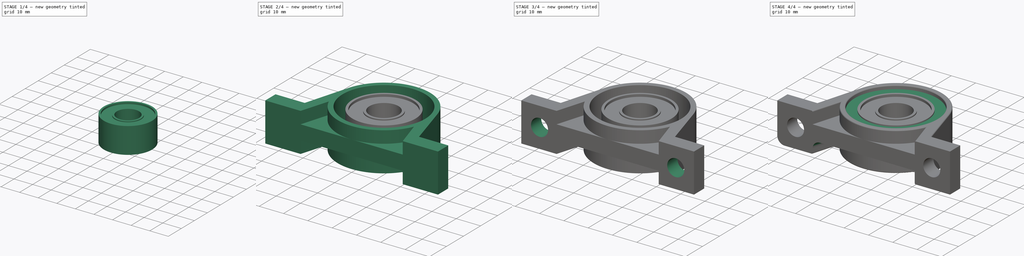
[diagram: build sequence overview — one tinted view per stage of 4, left to right]
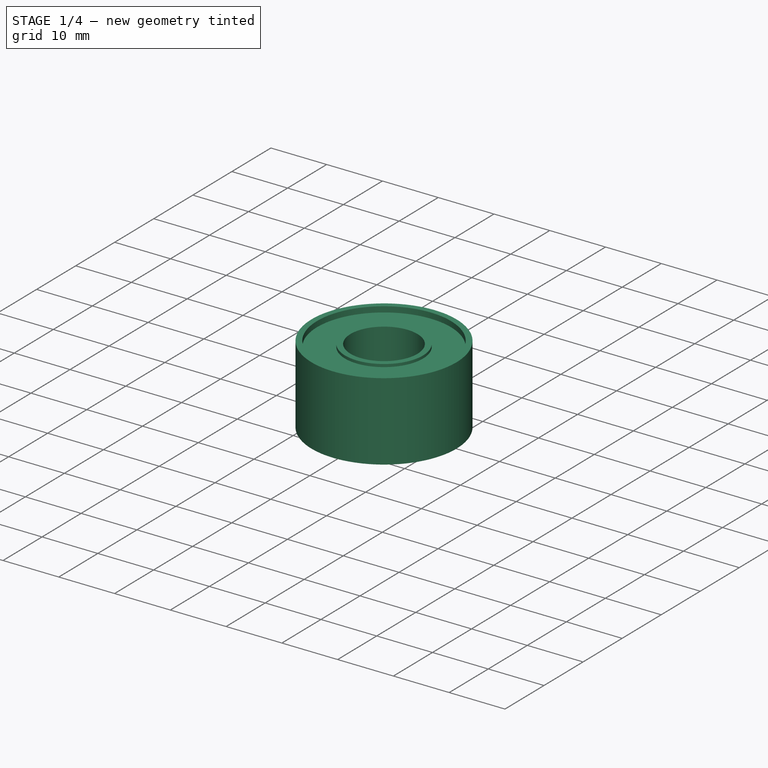
[diagram: stage 1 of 4 — iso view after this stage's code; geometry added in this stage tinted green]
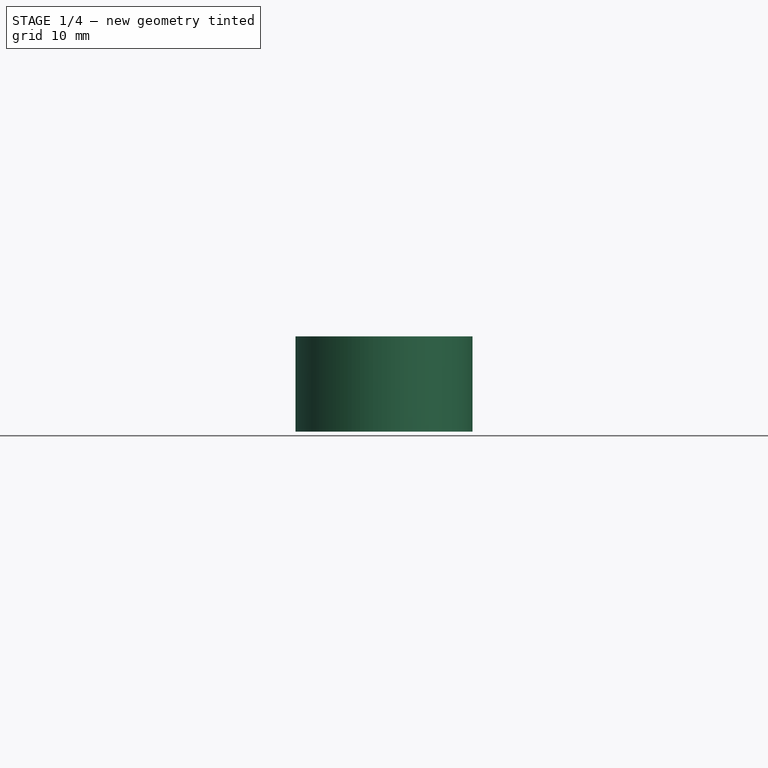
[diagram: stage 1 of 4 — front view after this stage's code; geometry added in this stage tinted green]
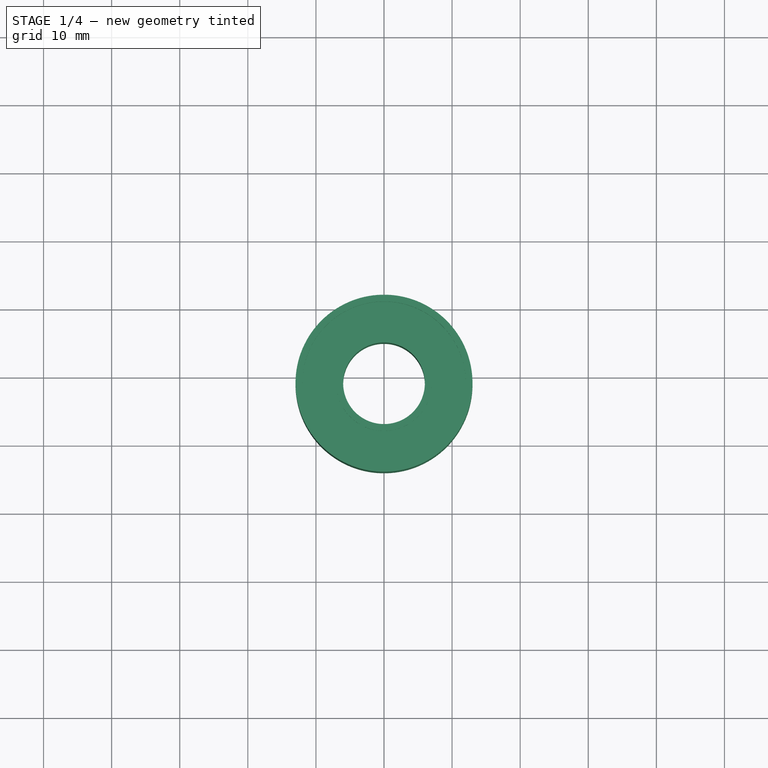
[diagram: stage 1 of 4 — top view after this stage's code; geometry added in this stage tinted green]
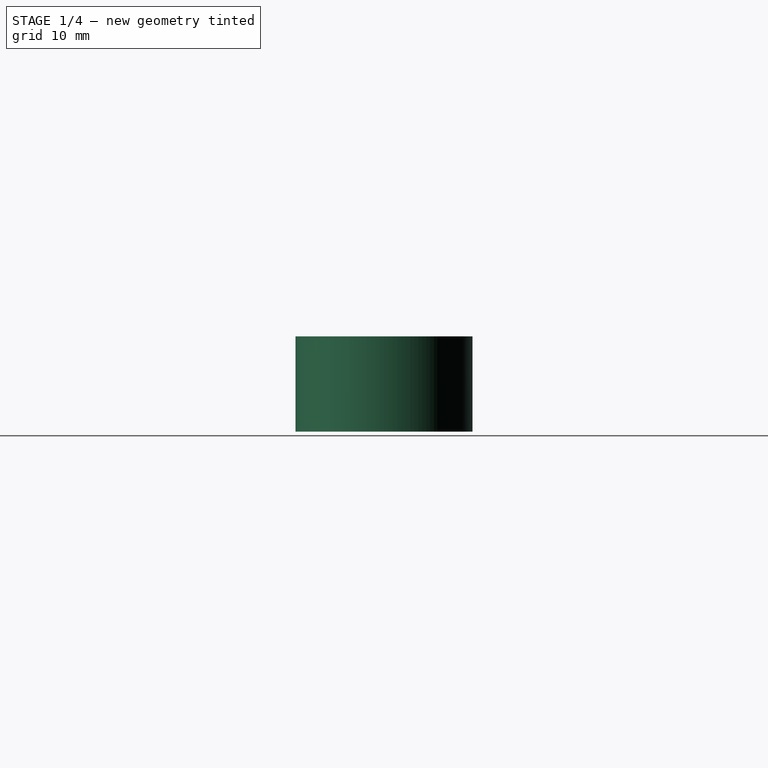
[diagram: stage 1 of 4 — right view after this stage's code; geometry added in this stage tinted green]
FCSTD DOCUMENT  (FreeCAD 1.0R39319 (Git))
Label: PillowBlock-KP001
License: All rights reserved
LicenseURL: http://en.wikipedia.org/wiki/All_rights_reserved
objects: Sketcher::SketchObject×7, PartDesign::Pad×5, PartDesign::Body×5, PartDesign::Pocket×2, PartDesign::Mirrored×2, PartDesign::Fillet×2
note: 50 computed .brp shape members not serialized (recipe doc carries the construction recipe); baked Part::Feature solids carry a one-line shape summary decoded from their .brp

FEATURE [PartDesign::Body] Body
  AllowCompound = false
  Group = -> [Sketch,Pad,Sketch001,Pocket,Mirrored,Sketch002,Pocket001,Mirrored001,Fillet,Fillet001]
  Origin = -> Origin
  Tip = -> Fillet001
FEATURE [Sketcher::SketchObject] Sketch004
  ArcFitTolerance = 0
  AttachmentOffset = pos=(0,19,0) rot=(0,0,1;0rad)
  AttachmentSupport = -> [XY_Plane002]
  FullyConstrained = true
  MakeInternals = false
  MapMode = 5
  Placement = pos=(0,19,0) rot=(0,0,1;0rad)
  sketch-geometry (2):
    g0: Circle CenterX=0 CenterY=0 CenterZ=0 NormalX=0 NormalY=0 NormalZ=1 AngleXU=0 Radius=13
    g1: Circle CenterX=0 CenterY=0 CenterZ=0 NormalX=0 NormalY=0 NormalZ=1 AngleXU=0 Radius=12
  constraints (4):
    c: Coincident(g0,g-1)
    c: Diameter(g0) = 26
    c: Coincident(g1,g0)
    c: Diameter(g1) = 24
FEATURE [PartDesign::Pad] Pad002
  AllowMultiFace = false
  Direction = (0,0,1)
  Length = 14
  Length2 = 100
  Midplane = true
  Profile = -> Sketch004
  Suppressed = false
  Type = 0
FEATURE [PartDesign::Body] Body002
  AllowCompound = false
  Group = -> [Sketch004,Pad002]
  Origin = -> Origin002
  Tip = -> Pad002
FEATURE [Sketcher::SketchObject] Sketch005
  ArcFitTolerance = 0
  AttachmentOffset = pos=(0,19,0) rot=(0,0,1;0rad)
  AttachmentSupport = -> [XY_Plane003]
  FullyConstrained = true
  MakeInternals = false
  MapMode = 5
  Placement = pos=(0,19,0) rot=(0,0,1;0rad)
  sketch-geometry (2):
    g0: Circle CenterX=0 CenterY=0 CenterZ=0 NormalX=0 NormalY=0 NormalZ=1 AngleXU=0 Radius=12
    g1: Circle CenterX=0 CenterY=0 CenterZ=0 NormalX=0 NormalY=0 NormalZ=1 AngleXU=0 Radius=7
  constraints (4):
    c: Coincident(g0,g-1)
    c: Coincident(g1,g0)
    c: Diameter(g0) = 24
    c: Diameter(g1) = 14
FEATURE [PartDesign::Pad] Pad003
  AllowMultiFace = false
  Direction = (0,0,1)
  Length = 12
  Length2 = 100
  Midplane = true
  Profile = -> Sketch005
  Suppressed = false
  Type = 0
FEATURE [PartDesign::Body] Body003
  AllowCompound = false
  Group = -> [Sketch005,Pad003]
  Origin = -> Origin003
  Tip = -> Pad003
FEATURE [Sketcher::SketchObject] Sketch006
  ArcFitTolerance = 0
  AttachmentOffset = pos=(0,19,0) rot=(0,0,1;0rad)
  AttachmentSupport = -> [XY_Plane004]
  FullyConstrained = true
  MakeInternals = false
  MapMode = 5
  Placement = pos=(0,19,0) rot=(0,0,1;0rad)
  sketch-geometry (2):
    g0: Circle CenterX=0 CenterY=0 CenterZ=0 NormalX=0 NormalY=0 NormalZ=1 AngleXU=0 Radius=7
    g1: Circle CenterX=0 CenterY=0 CenterZ=0 NormalX=0 NormalY=0 NormalZ=1 AngleXU=0 Radius=6
  constraints (4):
    c: Coincident(g0,g-1)
    c: Coincident(g1,g0)
    c: Diameter(g0) = 14
    c: Diameter(g1) = 12
FEATURE [PartDesign::Pad] Pad004
  AllowMultiFace = false
  Direction = (0,0,1)
  Length = 13
  Length2 = 100
  Midplane = true
  Profile = -> Sketch006
  Suppressed = false
  Type = 0
FEATURE [PartDesign::Body] Body004
  AllowCompound = false
  Group = -> [Sketch006,Pad004]
  Origin = -> Origin004
  Tip = -> Pad004
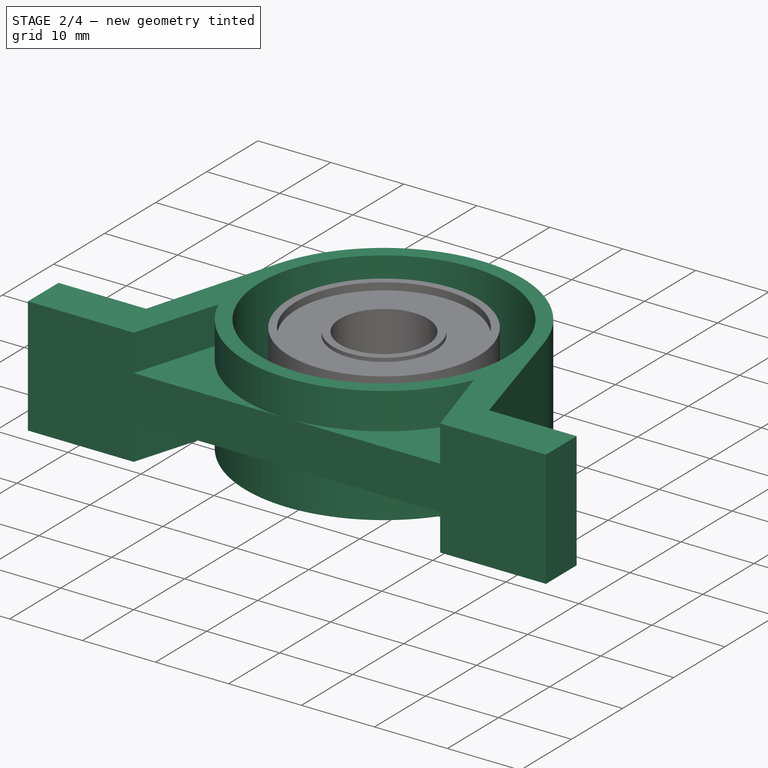
[diagram: stage 2 of 4 — iso view after this stage's code; geometry added in this stage tinted green]
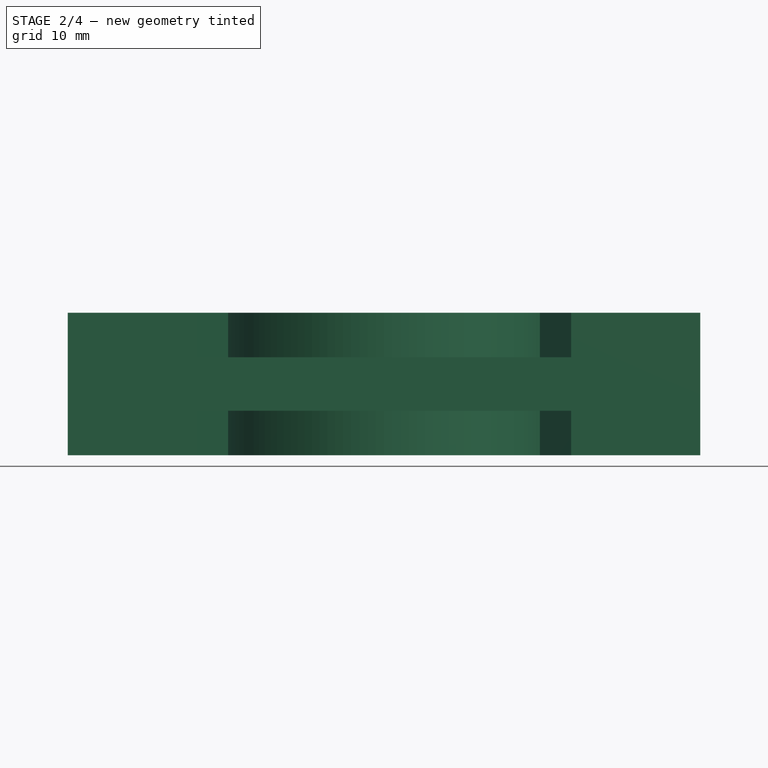
[diagram: stage 2 of 4 — front view after this stage's code; geometry added in this stage tinted green]
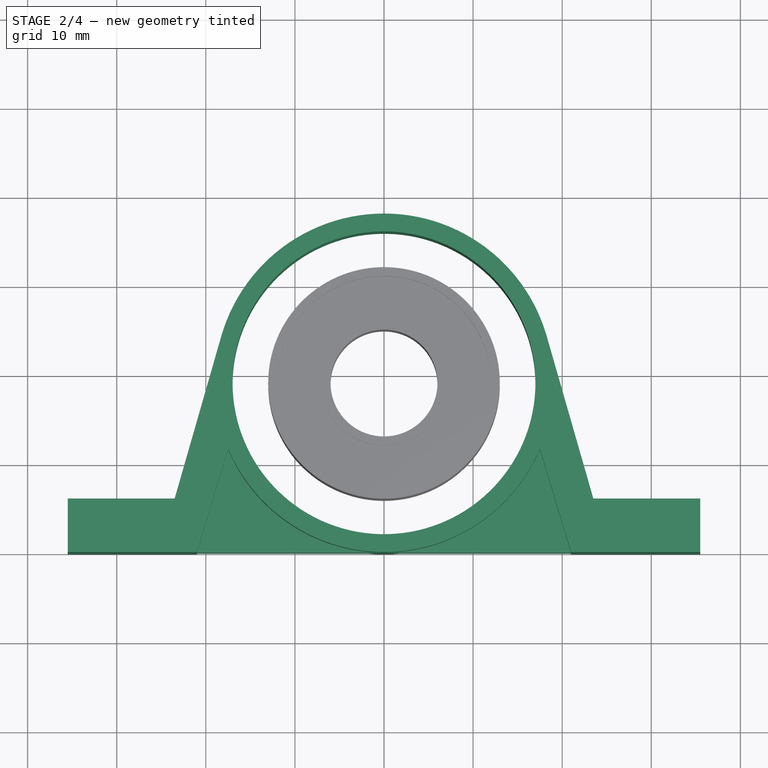
[diagram: stage 2 of 4 — top view after this stage's code; geometry added in this stage tinted green]
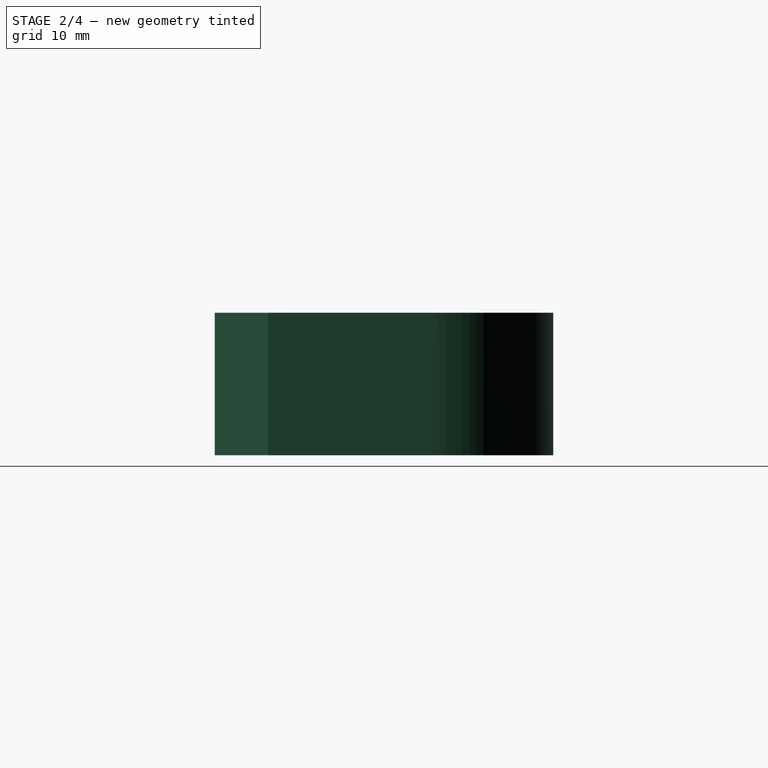
[diagram: stage 2 of 4 — right view after this stage's code; geometry added in this stage tinted green]
FEATURE [Sketcher::SketchObject] Sketch
  ArcFitTolerance = 0
  AttachmentSupport = -> [XY_Plane]
  FullyConstrained = true
  MakeInternals = false
  MapMode = 5
  sketch-geometry (9):
    g0: Circle CenterX=4e-16 CenterY=19 CenterZ=0 NormalX=0 NormalY=0 NormalZ=1 AngleXU=0 Radius=17
    g1: LineSegment StartX=-35.5 StartY=0 StartZ=0 EndX=-35.5 EndY=6 EndZ=0
    g2: LineSegment StartX=-35.5 StartY=6 StartZ=0 EndX=-23.5 EndY=6 EndZ=0
    g3: LineSegment StartX=-23.5 StartY=6 StartZ=0 EndX=-18.2622 EndY=24.2432 EndZ=0
    g4: LineSegment StartX=35.5 StartY=0 StartZ=0 EndX=35.5 EndY=6 EndZ=0
    g5: LineSegment StartX=35.5 StartY=6 StartZ=0 EndX=23.5 EndY=6 EndZ=0
    g6: LineSegment StartX=23.5 StartY=6 StartZ=0 EndX=18.2622 EndY=24.2432 EndZ=0
    g7: ArcOfCircle CenterX=4e-16 CenterY=19 CenterZ=0 NormalX=0 NormalY=0 NormalZ=1 AngleXU=0 Radius=19 StartAngle=0.279588 EndAngle=2.862
    g8: LineSegment StartX=-35.5 StartY=0 StartZ=0 EndX=35.5 EndY=0 EndZ=0
  constraints (25):
    c: Diameter(g0) = 34
    c: DistanceY(g0) = 19
    c: PointOnObject(g1,g-1)
    c: Coincident(g1,g2)
    c: Horizontal(g2)
    c: Coincident(g2,g3)
    c: Vertical(g1)
    c: Coincident(g4,g5)
    c: Horizontal(g5)
    c: Coincident(g5,g6)
    c: Vertical(g4)
    c: Symmetric(g1,g4,g-2)
    c: Equal(g1,g4)
    c: DistanceY(g1,g1) = 6
    c: DistanceX(g1,g4) = 71
    c: Symmetric(g3,g6,g-2)
    c: Equal(g2,g5)
    c: Coincident(g7,g0)
    c: Coincident(g7,g3)
    c: Coincident(g7,g6)
    c: Tangent(g3,g7) = 1.5708
    c: DistanceX(g2,g2) = 12
    c: Coincident(g8,g1)
    c: Diameter(g7) = 38
    c: Coincident(g8,g4)
FEATURE [PartDesign::Pad] Pad
  AllowMultiFace = false
  Direction = (0,0,1)
  Length = 16
  Length2 = 100
  Midplane = true
  Profile = -> Sketch
  Suppressed = false
  Type = 0
FEATURE [Sketcher::SketchObject] Sketch001
  ArcFitTolerance = 0
  AttachmentSupport = -> [Pad]
  FullyConstrained = true
  MakeInternals = false
  MapMode = 5
  Placement = pos=(0,0,8) rot=(0,0,1;0rad)
  sketch-geometry (6):
    g0: LineSegment StartX=17.5 StartY=11.6007 StartZ=0 EndX=21 EndY=0 EndZ=0
    g1: ArcOfCircle CenterX=0 CenterY=19 CenterZ=0 NormalX=0 NormalY=0 NormalZ=1 AngleXU=0 Radius=19 StartAngle=3.54161 EndAngle=5.88316
    g2: LineSegment StartX=-17.5 StartY=11.6007 StartZ=0 EndX=-21 EndY=0 EndZ=0
    g3: LineSegment StartX=-21 StartY=0 StartZ=0 EndX=-21 EndY=-2 EndZ=0
    g4: LineSegment StartX=-21 StartY=-2 StartZ=0 EndX=21 EndY=-2 EndZ=0
    g5: LineSegment StartX=21 StartY=-2 StartZ=0 EndX=21 EndY=0 EndZ=0
  constraints (18):
    c: DistanceX(g0) = 17.5
    c: PointOnObject(g1,g-2)
    c: Coincident(g1,g0)
    c: DistanceY(g1) = 19
    c: Radius(g1) = 19
    c: Coincident(g2,g1)
    c: Symmetric(g2,g0,g-2)
    c: Horizontal(g1,g0)
    c: Coincident(g2,g3)
    c: Vertical(g3)
    c: Coincident(g3,g4)
    c: Horizontal(g4)
    c: Coincident(g4,g5)
    c: Coincident(g5,g0)
    c: Vertical(g5)
    c: DistanceY(g5,g5) = 2
    c: DistanceX(g4,g4) = 42
    c: DistanceY(g3,g-1) = 2
FEATURE [PartDesign::Pocket] Pocket
  AllowMultiFace = false
  BaseFeature = -> Pad
  Direction = (0,0,-1)
  Length = 5
  Length2 = 100
  Profile = -> Sketch001
  Suppressed = false
  Type = 0
FEATURE [PartDesign::Mirrored] Mirrored
  BaseFeature = -> Pocket
  MirrorPlane = -> XY_Plane
  Originals = -> [Pocket]
  Suppressed = false
  TransformMode = 0
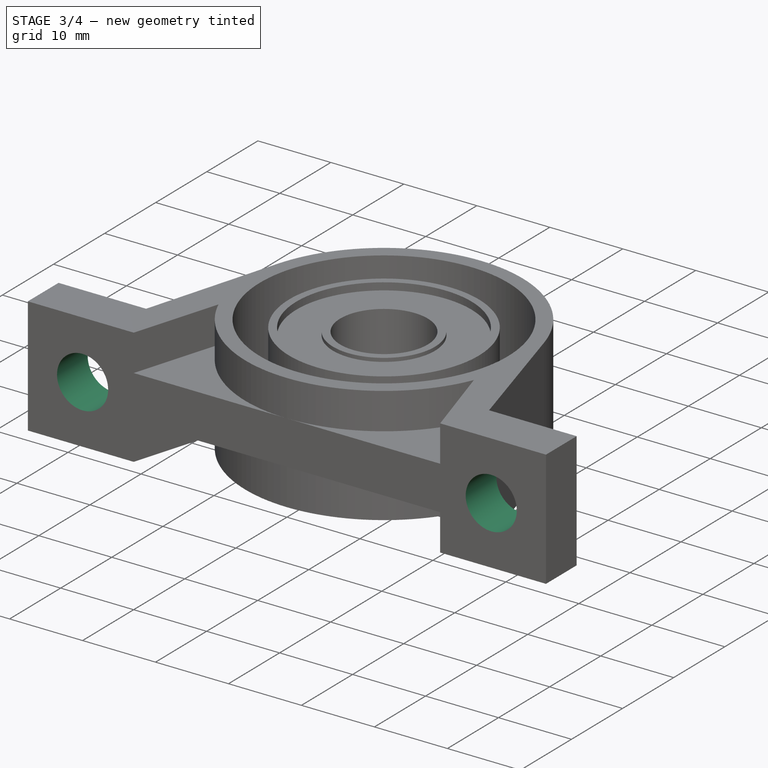
[diagram: stage 3 of 4 — iso view after this stage's code; geometry added in this stage tinted green]
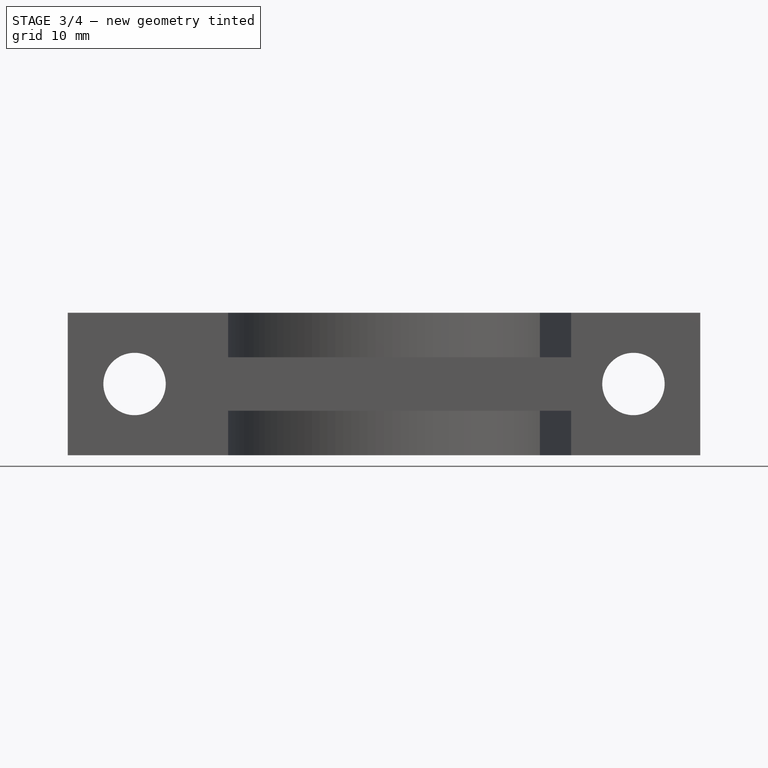
[diagram: stage 3 of 4 — front view after this stage's code; geometry added in this stage tinted green]
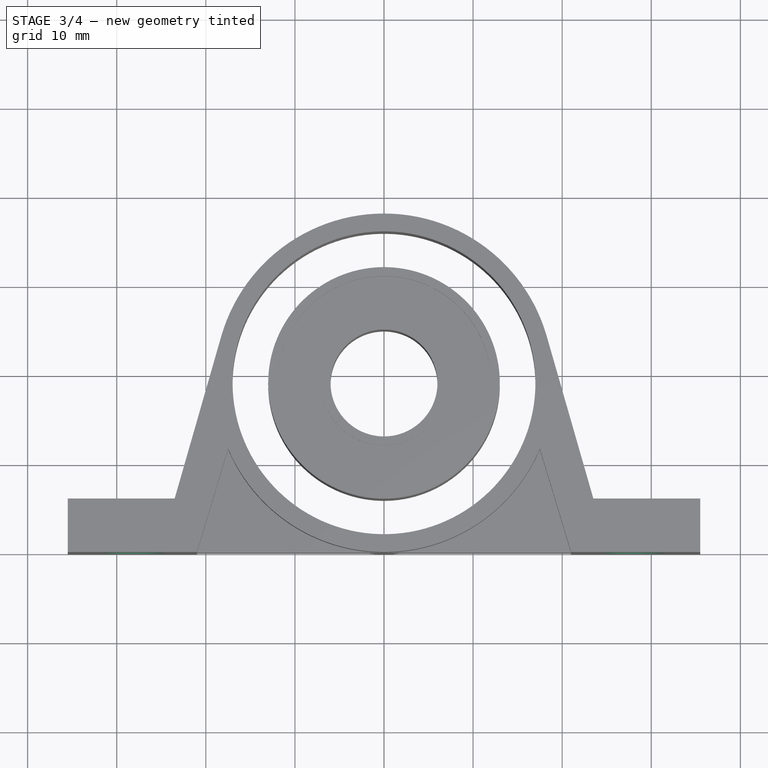
[diagram: stage 3 of 4 — top view after this stage's code; geometry added in this stage tinted green]
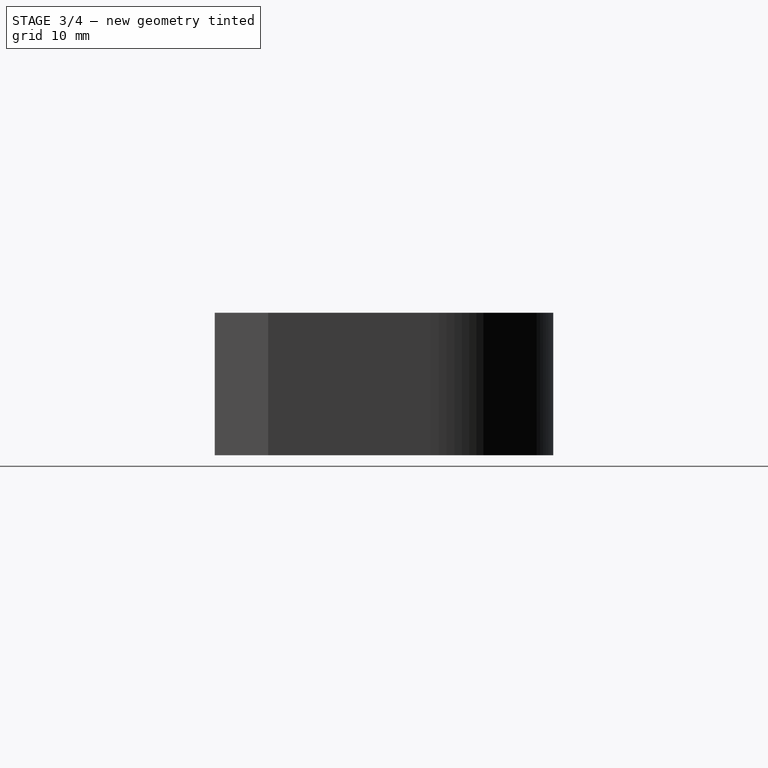
[diagram: stage 3 of 4 — right view after this stage's code; geometry added in this stage tinted green]
FEATURE [Sketcher::SketchObject] Sketch002
  ArcFitTolerance = 0
  AttachmentSupport = -> [Mirrored]
  FullyConstrained = true
  MakeInternals = false
  MapMode = 5
  Placement = pos=(0,0,0) rot=(1,0,0;1.5708rad)
  sketch-geometry (1):
    g0: Circle CenterX=-28 CenterY=0 CenterZ=0 NormalX=0 NormalY=0 NormalZ=1 AngleXU=0 Radius=3.5
  constraints (3):
    c: PointOnObject(g0,g-1)
    c: DistanceX(g0,g-1) = 28
    c: Diameter(g0) = 7
FEATURE [PartDesign::Pocket] Pocket001
  AllowMultiFace = false
  BaseFeature = -> Mirrored
  Direction = (0,1,-2e-16)
  Length = 6
  Length2 = 100
  Profile = -> Sketch002
  Suppressed = false
  Type = 0
FEATURE [PartDesign::Mirrored] Mirrored001
  BaseFeature = -> Pocket001
  MirrorPlane = -> YZ_Plane
  Originals = -> [Pocket001]
  Suppressed = false
  TransformMode = 0
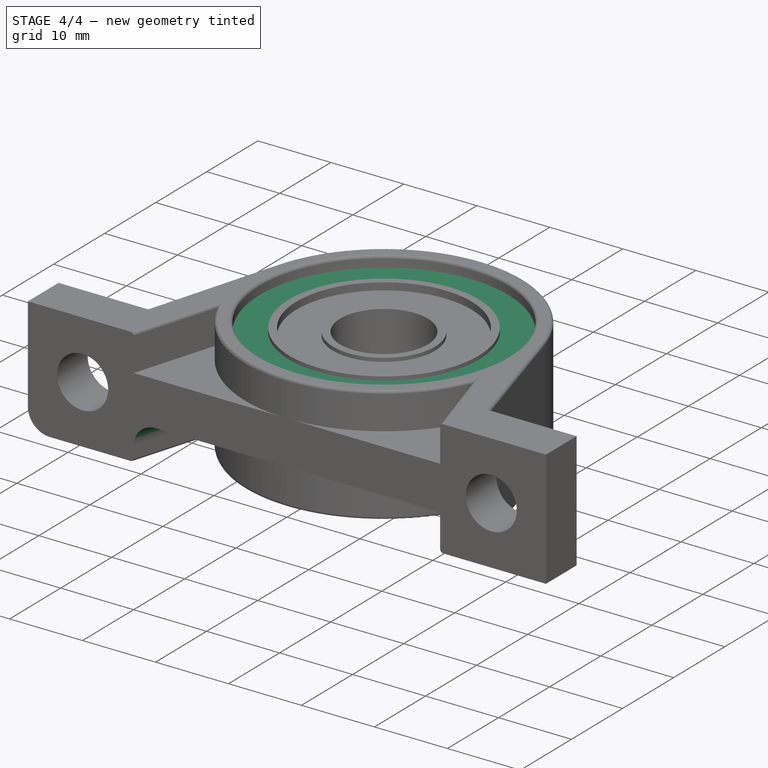
[diagram: stage 4 of 4 — iso view after this stage's code; geometry added in this stage tinted green]
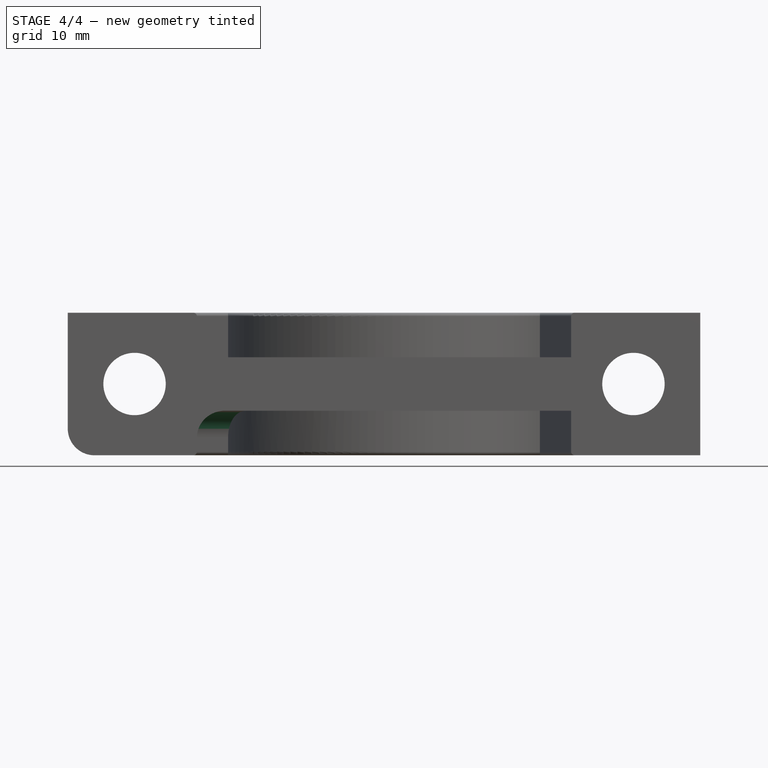
[diagram: stage 4 of 4 — front view after this stage's code; geometry added in this stage tinted green]
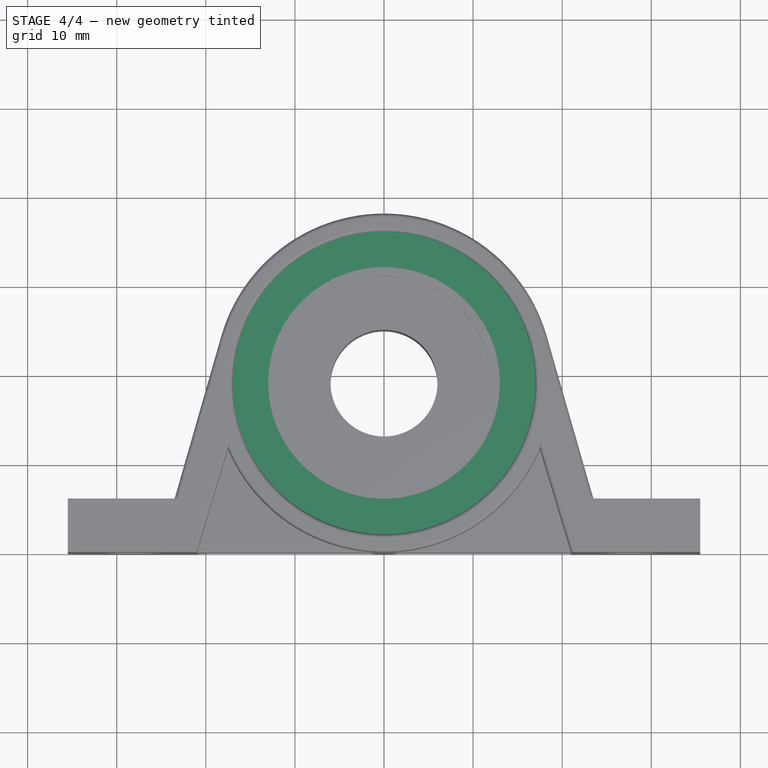
[diagram: stage 4 of 4 — top view after this stage's code; geometry added in this stage tinted green]
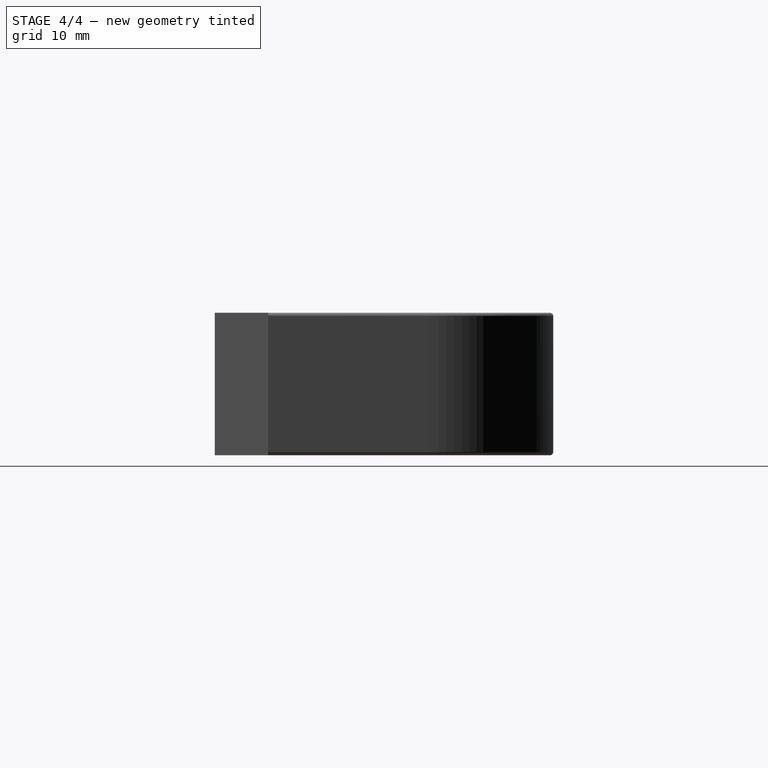
[diagram: stage 4 of 4 — right view after this stage's code; geometry added in this stage tinted green]
FEATURE [PartDesign::Fillet] Fillet
  Base = -> Mirrored001 [Edge42,Edge32,Edge40,Edge30,Edge27,Edge37,Edge24,Edge34,Edge35,Edge26,Edge43,Edge33]
  BaseFeature = -> Mirrored001
  Radius = 0.4
  Refine = true
  SupportTransform = false
  Suppressed = false
  UseAllEdges = false
FEATURE [Sketcher::SketchObject] Sketch003
  ArcFitTolerance = 0
  AttachmentOffset = pos=(0,19,0) rot=(0,0,1;0rad)
  AttachmentSupport = -> [XY_Plane001]
  FullyConstrained = true
  MakeInternals = false
  MapMode = 5
  Placement = pos=(0,19,0) rot=(0,0,1;0rad)
  sketch-geometry (2):
    g0: Circle CenterX=0 CenterY=0 CenterZ=0 NormalX=0 NormalY=0 NormalZ=1 AngleXU=0 Radius=17
    g1: Circle CenterX=0 CenterY=0 CenterZ=0 NormalX=0 NormalY=0 NormalZ=1 AngleXU=0 Radius=13
  constraints (4):
    c: Coincident(g0,g-1)
    c: Coincident(g1,g0)
    c: Diameter(g0) = 34
    c: Diameter(g1) = 26
FEATURE [PartDesign::Pad] Pad001
  AllowMultiFace = false
  Direction = (0,0,1)
  Length = 13
  Length2 = 100
  Midplane = true
  Profile = -> Sketch003
  Suppressed = false
  Type = 0
FEATURE [PartDesign::Body] Body001
  AllowCompound = false
  Group = -> [Sketch003,Pad001]
  Origin = -> Origin001
  Tip = -> Pad001
FEATURE [PartDesign::Fillet] Fillet001
  Base = -> Fillet [Edge49,Edge30,Edge22,Edge38]
  BaseFeature = -> Fillet
  Radius = 3
  Refine = true
  SupportTransform = false
  Suppressed = false
  UseAllEdges = false
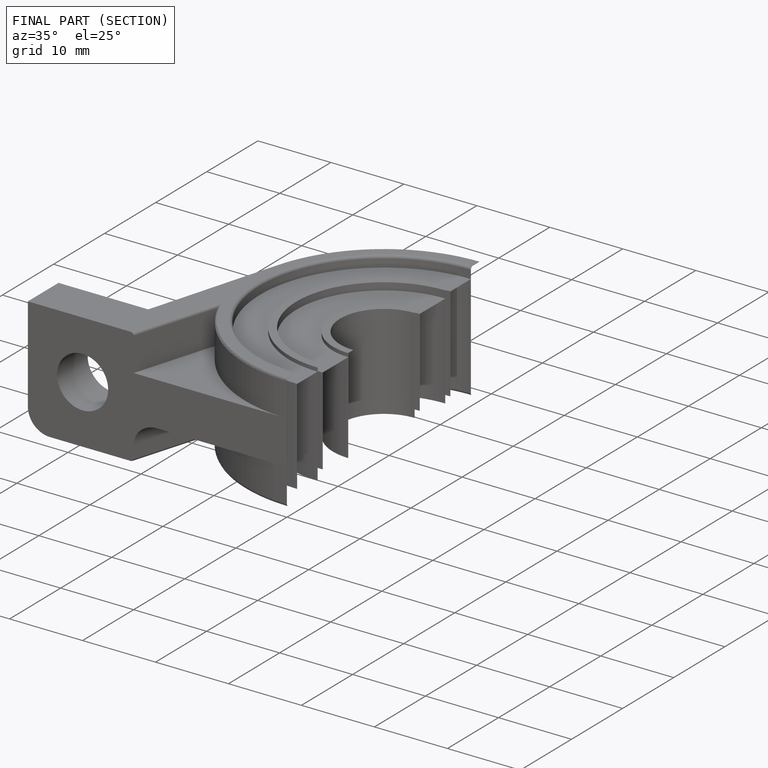
[diagram: finished part — half-section view (interior)]
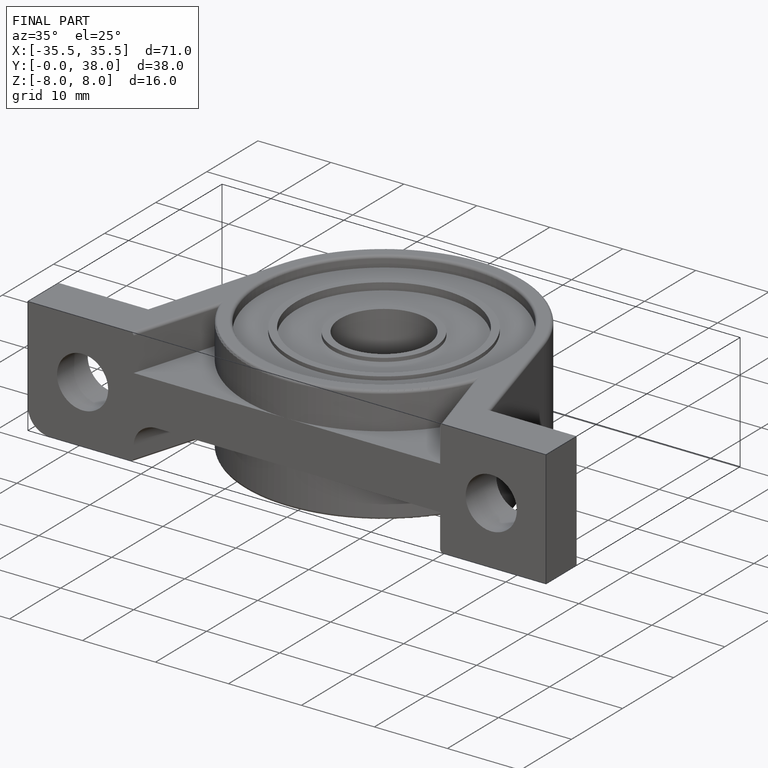
[diagram: finished part — iso view with bounding-box wireframe]
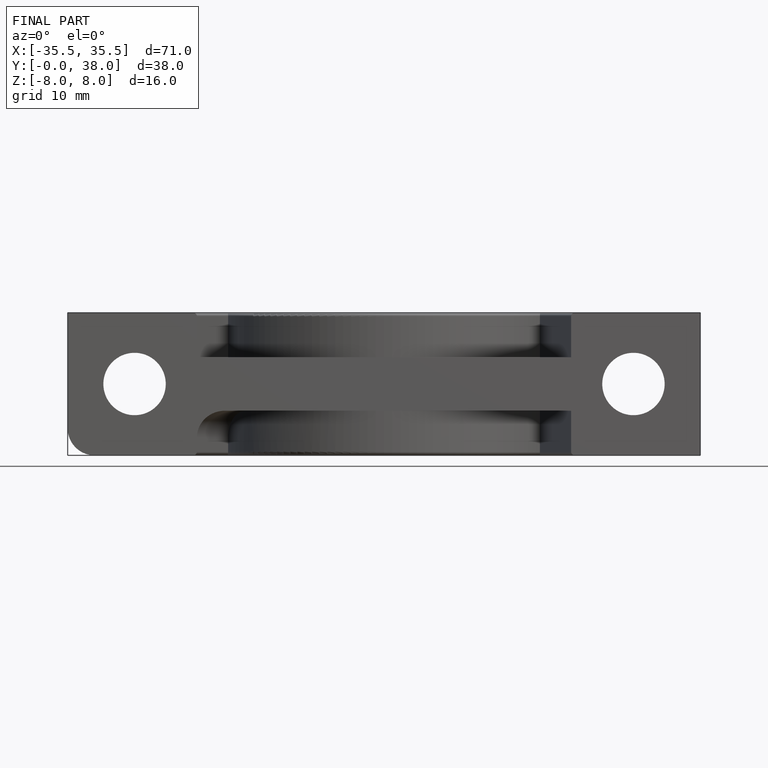
[diagram: finished part — front view with bounding-box wireframe]
